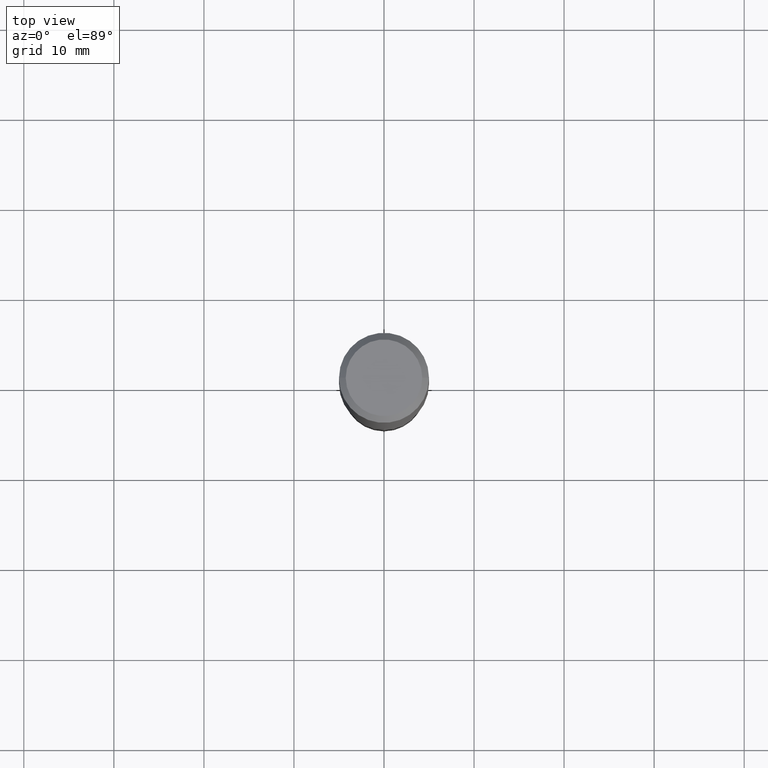
[diagram: clean part render]
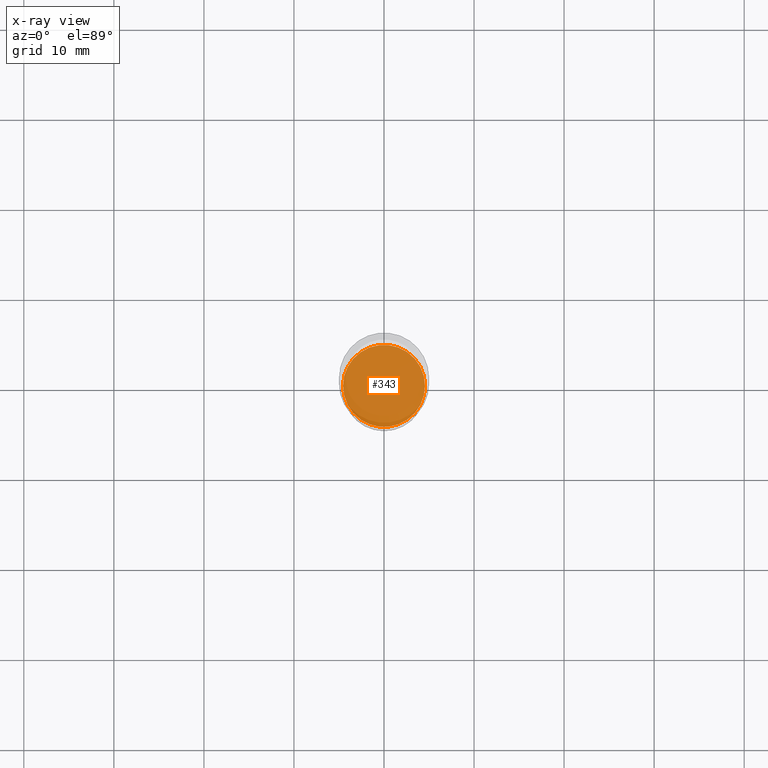
[diagram: x-ray — body ghosted, one internal face saturated and labeled with its STEP entity id]
A machine part, top view, then the same camera in x-ray: the body is ghosted and one INTERNAL B-rep face — a face not visible from any outside direction — is saturated and labeled: STEP entity #343.
In plain terms, the highlighted planar face has unit normal (-0, 0, 1).
Its self-contained STEP definition (entity closure, byte-faithful):
#50 = CARTESIAN_POINT ( 'NONE',  ( 5.063587710086944476E-29, -7.229461260208617724E-15, -2.070600000000000218 ) ) ;
#116 = DIRECTION ( 'NONE',  ( 1.000000000000000000, -6.982962677686265922E-15, 4.876176775795935793E-29 ) ) ;
#124 = AXIS2_PLACEMENT_3D ( 'NONE', #50, #299, #409 ) ;
#133 = VERTEX_POINT ( 'NONE', #149 ) ;
#149 = CARTESIAN_POINT ( 'NONE',  ( 0.1791999999999999982, -8.480808172049995659E-15, -2.070600000000000218 ) ) ;
#157 = DIRECTION ( 'NONE',  ( -2.445468806185136597E-29, 3.491481338843145583E-15, 1.000000000000000000 ) ) ;
#162 = CIRCLE ( 'NONE', #379, 0.1791999999999999982 ) ;
#176 = EDGE_LOOP ( 'NONE', ( #255, #429 ) ) ;
#181 = DIRECTION ( 'NONE',  ( 1.000000000000000000, -6.982962677686264344E-15, 0.000000000000000000 ) ) ;
#185 = CARTESIAN_POINT ( 'NONE',  ( 5.063587710086944476E-29, -7.229461260208617724E-15, -2.070600000000000218 ) ) ;
#192 = VERTEX_POINT ( 'NONE', #436 ) ;
#216 = AXIS2_PLACEMENT_3D ( 'NONE', #185, #445, #116 ) ;
#221 = FACE_OUTER_BOUND ( 'NONE', #176, .T. ) ;
#236 = CIRCLE ( 'NONE', #124, 0.1791999999999999982 ) ;
#255 = ORIENTED_EDGE ( 'NONE', *, *, #296, .F. ) ;
#284 = PLANE ( 'NONE',  #216 ) ;
#287 = EDGE_CURVE ( 'NONE', #192, #133, #162, .T. ) ;
#296 = EDGE_CURVE ( 'NONE', #133, #192, #236, .T. ) ;
#299 = DIRECTION ( 'NONE',  ( -2.445468806185136597E-29, 3.491481338843145583E-15, 1.000000000000000000 ) ) ;
#341 = CARTESIAN_POINT ( 'NONE',  ( 5.063587710086944476E-29, -7.229461260208617724E-15, -2.070600000000000218 ) ) ;
#343 = ADVANCED_FACE ( 'NONE', ( #221 ), #284, .F. ) ;
#379 = AXIS2_PLACEMENT_3D ( 'NONE', #341, #157, #181 ) ;
#409 = DIRECTION ( 'NONE',  ( 1.000000000000000000, -6.982962677686264344E-15, 0.000000000000000000 ) ) ;
#429 = ORIENTED_EDGE ( 'NONE', *, *, #287, .F. ) ;
#436 = CARTESIAN_POINT ( 'NONE',  ( -0.1791999999999999982, -5.953519450552407595E-15, -2.070600000000000218 ) ) ;
#445 = DIRECTION ( 'NONE',  ( -2.438088387897960049E-29, 3.491481338843145188E-15, 1.000000000000000000 ) ) ;